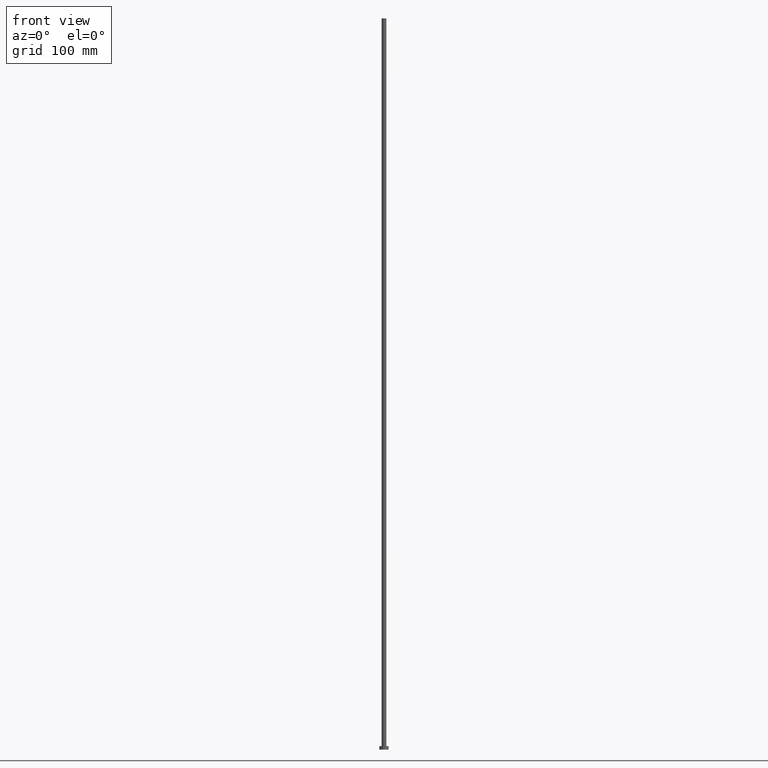
[diagram: clean part render]
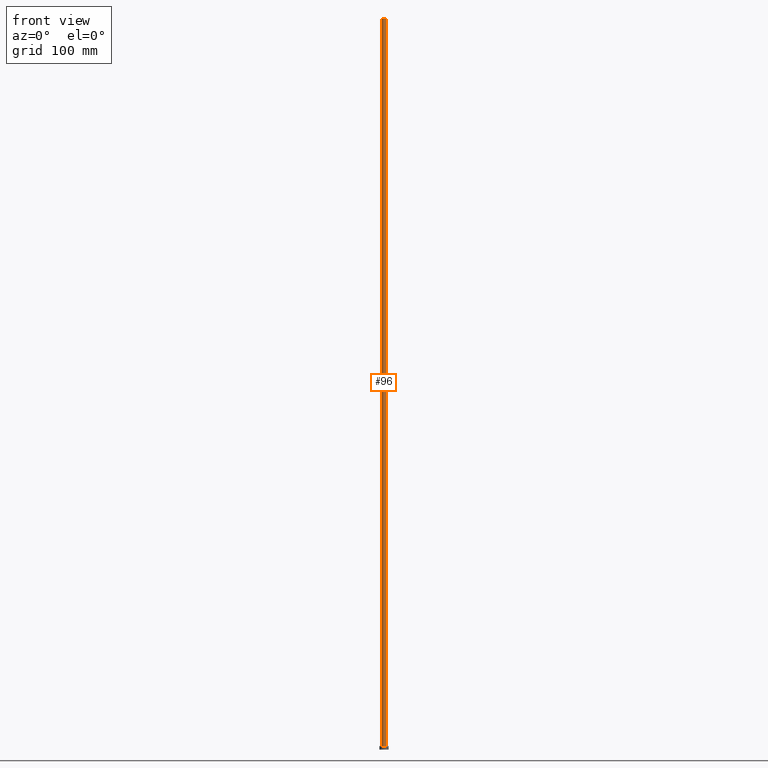
[diagram: same view with one face highlighted and labeled with its STEP entity id]
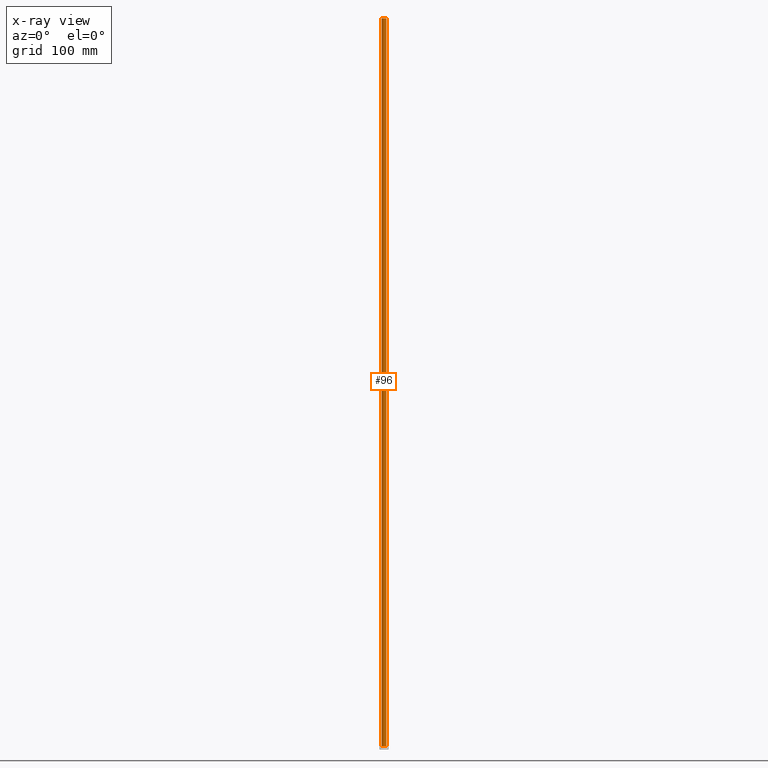
[diagram: x-ray of the same camera — body ghosted, the highlighted face saturated]
A machine part, front view. The second image highlights one B-rep face of the part: STEP entity #96.
The next image is the same camera in x-ray: the body ghosted, the highlighted face saturated — about 0% of this face is hidden behind the body in this view.
In plain terms, the highlighted cylindrical surface (edge-blend (fillet) strip) has radius 2 mm, axis along (-0, -0, -1).
Its self-contained STEP definition (entity closure, byte-faithful):
#4 = EDGE_LOOP ( 'NONE', ( #9, #154, #5, #227 ) ) ;
#5 = ORIENTED_EDGE ( 'NONE', *, *, #150, .T. ) ;
#6 = VERTEX_POINT ( 'NONE', #226 ) ;
#9 = ORIENTED_EDGE ( 'NONE', *, *, #125, .F. ) ;
#21 = VECTOR ( 'NONE', #168, 1000.000000000000000 ) ;
#25 = EDGE_CURVE ( 'NONE', #95, #6, #57, .T. ) ;
#28 = VERTEX_POINT ( 'NONE', #245 ) ;
#40 = CARTESIAN_POINT ( 'NONE',  ( -2.000000000000000000, 0.000000000000000000, 630.0000000000000000 ) ) ;
#57 = CIRCLE ( 'NONE', #205, 2.000000000000000000 ) ;
#62 = CARTESIAN_POINT ( 'NONE',  ( -2.000000000000000000, 0.000000000000000000, 3.000000000000000000 ) ) ;
#79 = DIRECTION ( 'NONE',  ( 0.000000000000000000, 0.000000000000000000, 1.000000000000000000 ) ) ;
#81 = LINE ( 'NONE', #179, #21 ) ;
#86 = CYLINDRICAL_SURFACE ( 'NONE', #244, 2.000000000000000000 ) ;
#89 = DIRECTION ( 'NONE',  ( -0.000000000000000000, -0.000000000000000000, -1.000000000000000000 ) ) ;
#91 = EDGE_CURVE ( 'NONE', #133, #28, #139, .T. ) ;
#95 = VERTEX_POINT ( 'NONE', #62 ) ;
#96 = ADVANCED_FACE ( 'NONE', ( #164 ), #86, .T. ) ;
#100 = CARTESIAN_POINT ( 'NONE',  ( 0.000000000000000000, 0.000000000000000000, 630.0000000000000000 ) ) ;
#104 = LINE ( 'NONE', #167, #166 ) ;
#125 = EDGE_CURVE ( 'NONE', #28, #6, #81, .T. ) ;
#133 = VERTEX_POINT ( 'NONE', #40 ) ;
#139 = CIRCLE ( 'NONE', #194, 2.000000000000000000 ) ;
#150 = EDGE_CURVE ( 'NONE', #133, #95, #104, .T. ) ;
#154 = ORIENTED_EDGE ( 'NONE', *, *, #91, .F. ) ;
#164 = FACE_OUTER_BOUND ( 'NONE', #4, .T. ) ;
#166 = VECTOR ( 'NONE', #89, 1000.000000000000000 ) ;
#167 = CARTESIAN_POINT ( 'NONE',  ( -2.000000000000000000, 0.000000000000000000, 630.0000000000000000 ) ) ;
#168 = DIRECTION ( 'NONE',  ( -0.000000000000000000, -0.000000000000000000, -1.000000000000000000 ) ) ;
#174 = DIRECTION ( 'NONE',  ( 0.000000000000000000, 0.000000000000000000, 1.000000000000000000 ) ) ;
#178 = CARTESIAN_POINT ( 'NONE',  ( 0.000000000000000000, 0.000000000000000000, 3.000000000000000000 ) ) ;
#179 = CARTESIAN_POINT ( 'NONE',  ( 2.000000000000000000, 2.449293598294706414E-16, 630.0000000000000000 ) ) ;
#182 = DIRECTION ( 'NONE',  ( -1.000000000000000000, 0.000000000000000000, 0.000000000000000000 ) ) ;
#184 = CARTESIAN_POINT ( 'NONE',  ( 0.000000000000000000, 0.000000000000000000, 630.0000000000000000 ) ) ;
#194 = AXIS2_PLACEMENT_3D ( 'NONE', #100, #174, #200 ) ;
#200 = DIRECTION ( 'NONE',  ( 1.000000000000000000, 0.000000000000000000, 0.000000000000000000 ) ) ;
#202 = DIRECTION ( 'NONE',  ( -0.000000000000000000, -0.000000000000000000, -1.000000000000000000 ) ) ;
#205 = AXIS2_PLACEMENT_3D ( 'NONE', #178, #79, #229 ) ;
#226 = CARTESIAN_POINT ( 'NONE',  ( 2.000000000000000000, 2.449293598294706414E-16, 3.000000000000000000 ) ) ;
#227 = ORIENTED_EDGE ( 'NONE', *, *, #25, .T. ) ;
#229 = DIRECTION ( 'NONE',  ( 1.000000000000000000, 0.000000000000000000, 0.000000000000000000 ) ) ;
#244 = AXIS2_PLACEMENT_3D ( 'NONE', #184, #202, #182 ) ;
#245 = CARTESIAN_POINT ( 'NONE',  ( 2.000000000000000000, 2.449293598294706414E-16, 630.0000000000000000 ) ) ;